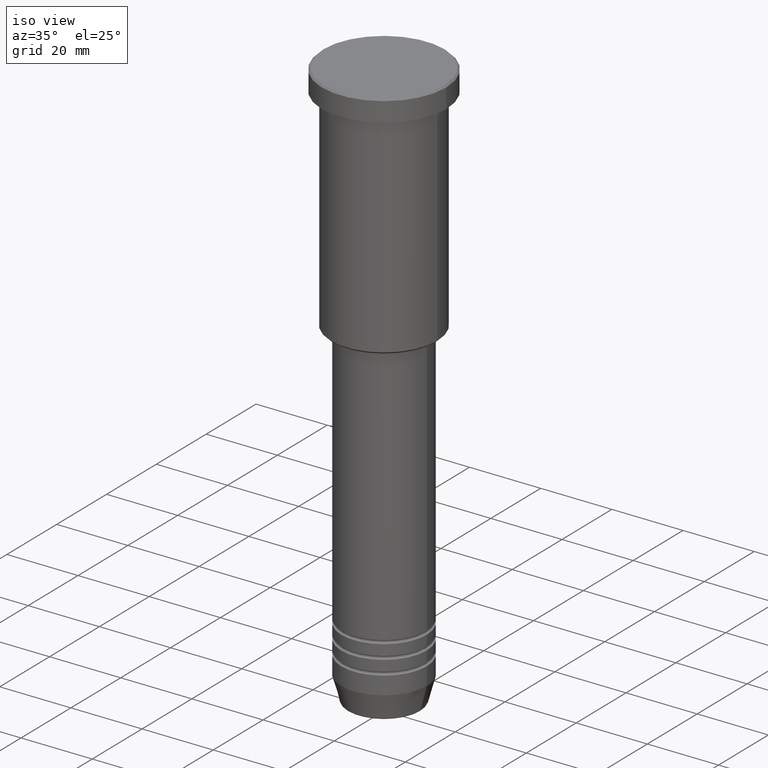
[diagram: clean part render]
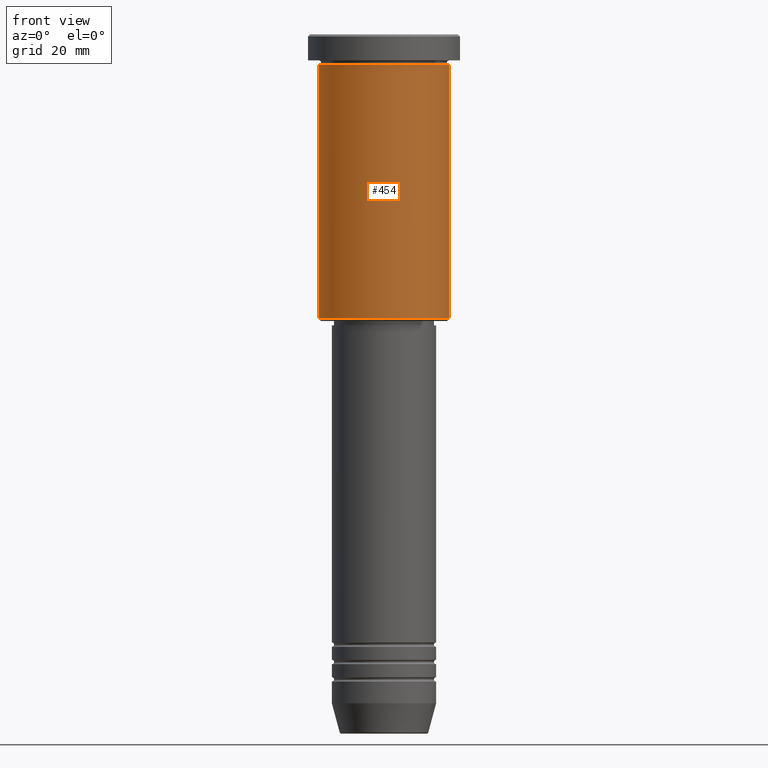
[diagram: tour spotlight — one face highlighted and labeled with its STEP entity id]
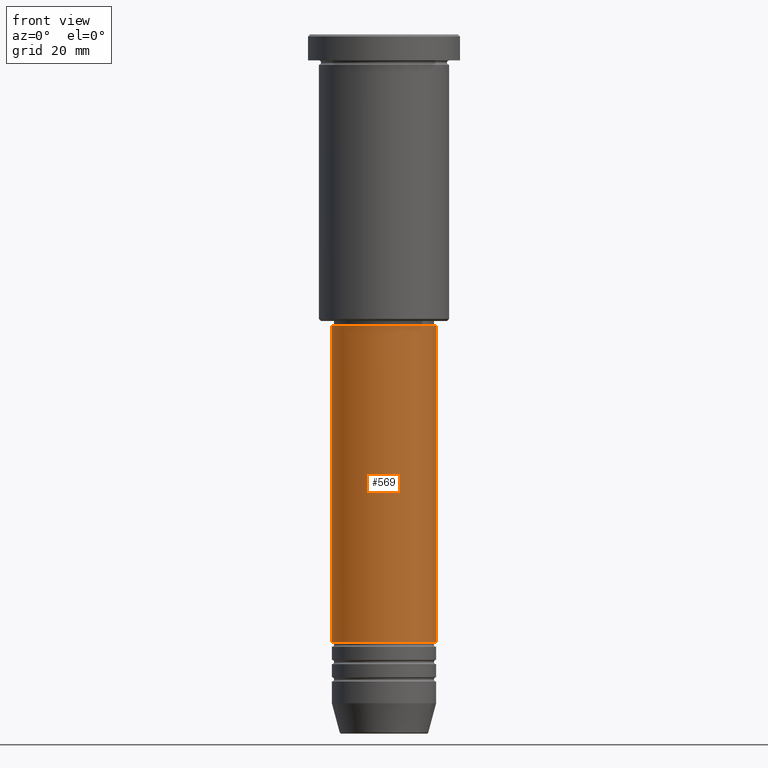
[diagram: tour spotlight — one face highlighted and labeled with its STEP entity id]
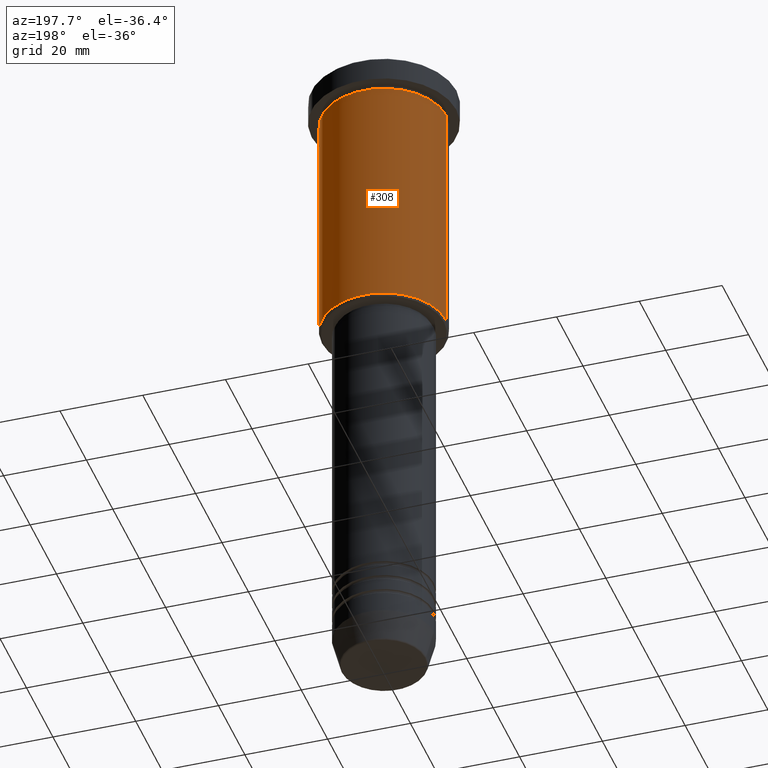
[diagram: tour spotlight — one face highlighted and labeled with its STEP entity id]
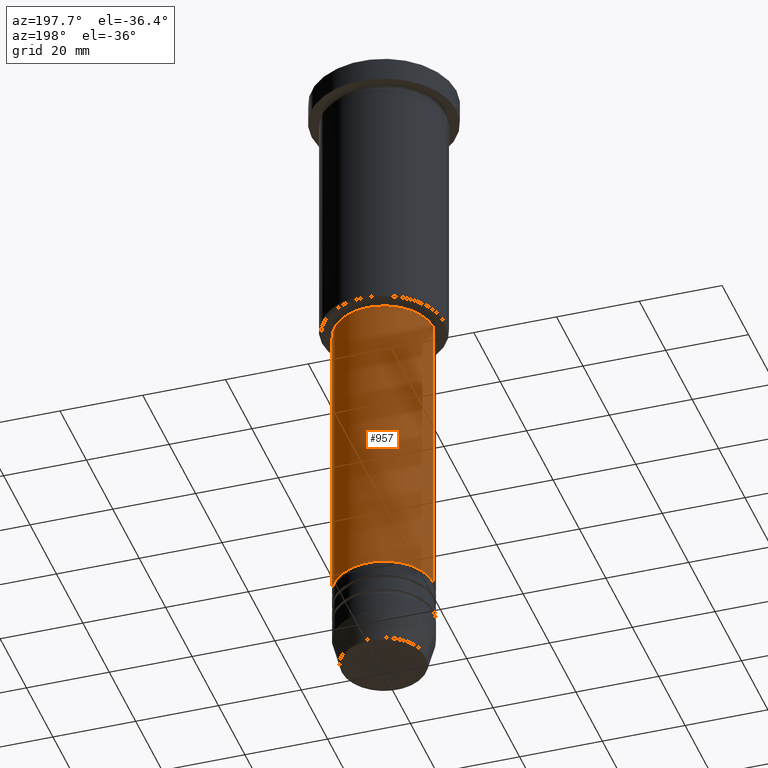
[diagram: tour spotlight — one face highlighted and labeled with its STEP entity id]
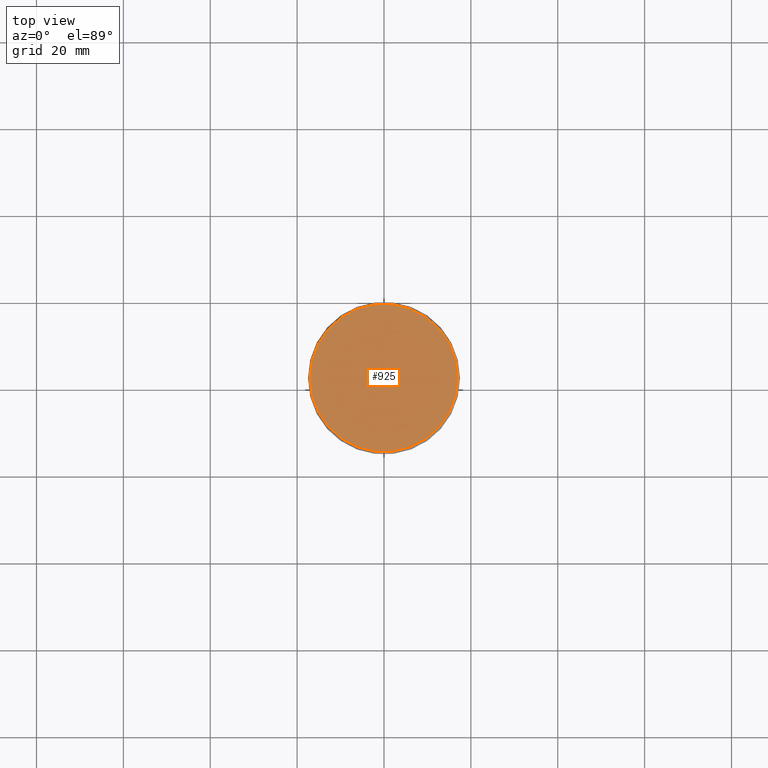
[diagram: tour spotlight — one face highlighted and labeled with its STEP entity id]
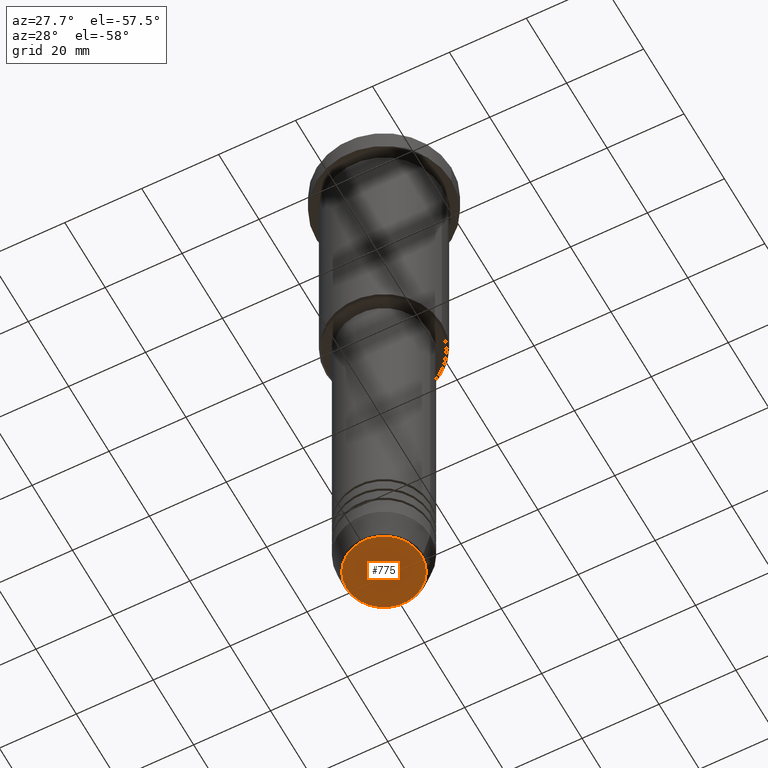
[diagram: tour spotlight — one face highlighted and labeled with its STEP entity id]
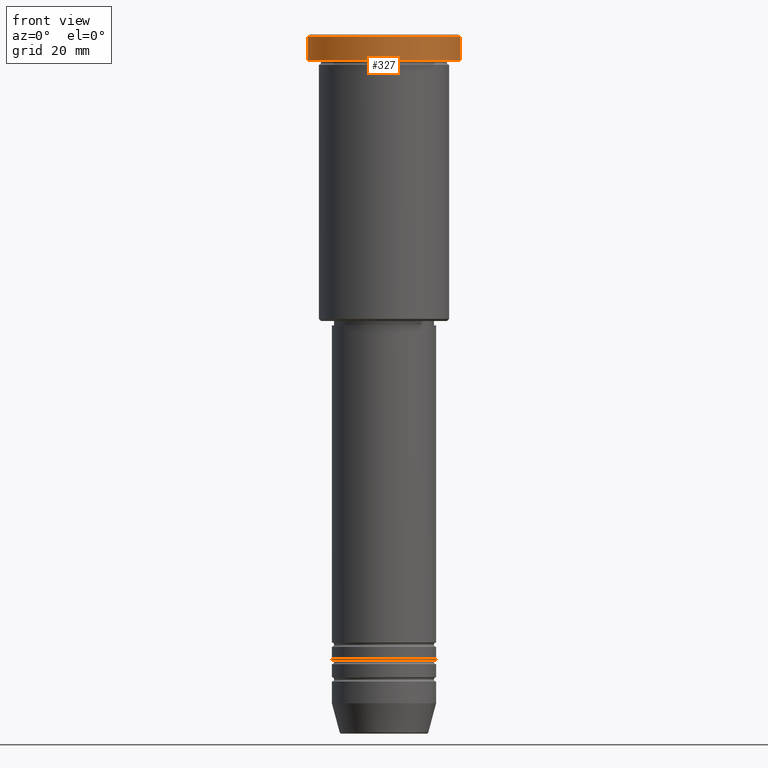
[diagram: tour spotlight — one face highlighted and labeled with its STEP entity id]
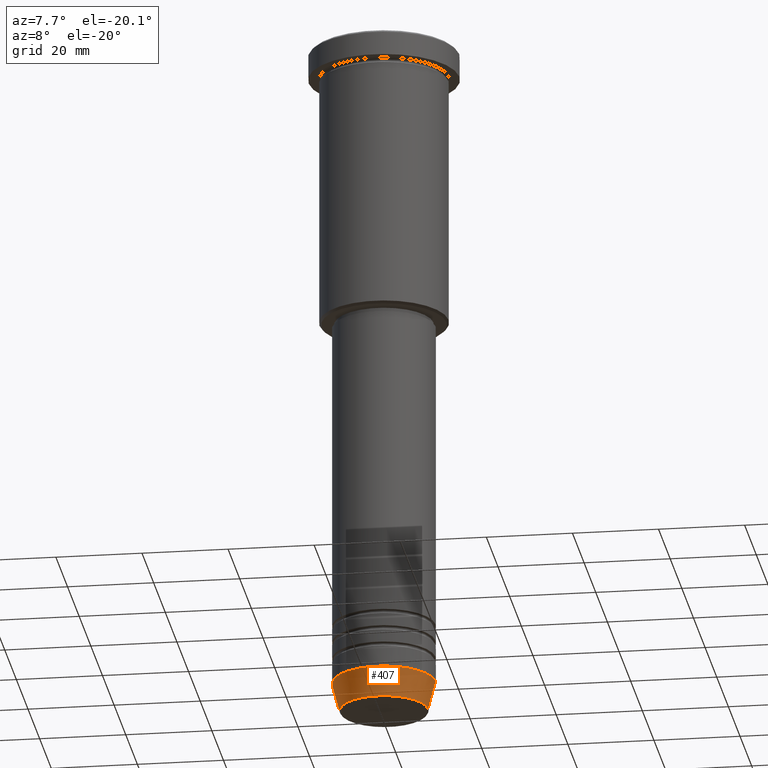
[diagram: tour spotlight — one face highlighted and labeled with its STEP entity id]
A machine part: a face-by-face anatomy tour. The part has 43 B-rep faces; the first image is the clean iso view, then the 8 largest visible faces are spotlighted one at a time (largest first), each with its STEP entity span.

Face 1 — front view, entity #454. In plain terms, the highlighted cylindrical surface (partial cylindrical patch) has radius 15 mm, axis along (-0, -0, 1).
Definition (entity closure, byte-faithful):
#18 = DIRECTION ( 'NONE',  ( -1.000000000000000000, 0.000000000000000000, 0.000000000000000000 ) ) ;
#45 = DIRECTION ( 'NONE',  ( 1.000000000000000000, 0.000000000000000000, 0.000000000000000000 ) ) ;
#73 = VERTEX_POINT ( 'NONE', #602 ) ;
#135 = VERTEX_POINT ( 'NONE', #245 ) ;
#144 = VERTEX_POINT ( 'NONE', #273 ) ;
#151 = DIRECTION ( 'NONE',  ( 1.000000000000000000, 0.000000000000000000, 0.000000000000000000 ) ) ;
#179 = DIRECTION ( 'NONE',  ( -0.000000000000000000, -0.000000000000000000, 1.000000000000000000 ) ) ;
#214 = EDGE_CURVE ( 'NONE', #135, #144, #613, .T. ) ;
#245 = CARTESIAN_POINT ( 'NONE',  ( 15.00000000000000000, 0.000000000000000000, -65.50000000000004263 ) ) ;
#260 = CARTESIAN_POINT ( 'NONE',  ( -15.00000000000000000, 1.836970198721029589E-15, -6.999999999999995559 ) ) ;
#273 = CARTESIAN_POINT ( 'NONE',  ( 15.00000000000000000, 0.000000000000000000, -6.999999999999995559 ) ) ;
#281 = AXIS2_PLACEMENT_3D ( 'NONE', #814, #967, #151 ) ;
#320 = CYLINDRICAL_SURFACE ( 'NONE', #963, 15.00000000000000000 ) ;
#372 = CARTESIAN_POINT ( 'NONE',  ( -15.00000000000000000, 1.836970198721029589E-15, 0.000000000000000000 ) ) ;
#393 = LINE ( 'NONE', #372, #681 ) ;
#454 = ADVANCED_FACE ( 'NONE', ( #1045 ), #320, .T. ) ;
#462 = CARTESIAN_POINT ( 'NONE',  ( 0.000000000000000000, 0.000000000000000000, -65.50000000000004263 ) ) ;
#528 = CARTESIAN_POINT ( 'NONE',  ( 15.00000000000000000, 0.000000000000000000, 0.000000000000000000 ) ) ;
#560 = ORIENTED_EDGE ( 'NONE', *, *, #751, .T. ) ;
#566 = DIRECTION ( 'NONE',  ( -0.000000000000000000, -0.000000000000000000, 1.000000000000000000 ) ) ;
#582 = CARTESIAN_POINT ( 'NONE',  ( 0.000000000000000000, 0.000000000000000000, 0.000000000000000000 ) ) ;
#602 = CARTESIAN_POINT ( 'NONE',  ( -15.00000000000000000, 1.836970198721029589E-15, -65.50000000000004263 ) ) ;
#613 = LINE ( 'NONE', #528, #962 ) ;
#674 = EDGE_CURVE ( 'NONE', #932, #144, #981, .T. ) ;
#681 = VECTOR ( 'NONE', #179, 1000.000000000000000 ) ;
#684 = AXIS2_PLACEMENT_3D ( 'NONE', #462, #566, #18 ) ;
#698 = EDGE_CURVE ( 'NONE', #73, #932, #393, .T. ) ;
#723 = DIRECTION ( 'NONE',  ( -0.000000000000000000, -0.000000000000000000, 1.000000000000000000 ) ) ;
#751 = EDGE_CURVE ( 'NONE', #73, #135, #798, .T. ) ;
#798 = CIRCLE ( 'NONE', #684, 15.00000000000000000 ) ;
#814 = CARTESIAN_POINT ( 'NONE',  ( 0.000000000000000000, 0.000000000000000000, -6.999999999999995559 ) ) ;
#820 = ORIENTED_EDGE ( 'NONE', *, *, #674, .F. ) ;
#850 = ORIENTED_EDGE ( 'NONE', *, *, #214, .T. ) ;
#881 = EDGE_LOOP ( 'NONE', ( #1133, #560, #850, #820 ) ) ;
#932 = VERTEX_POINT ( 'NONE', #260 ) ;
#962 = VECTOR ( 'NONE', #723, 1000.000000000000000 ) ;
#963 = AXIS2_PLACEMENT_3D ( 'NONE', #582, #1119, #45 ) ;
#967 = DIRECTION ( 'NONE',  ( -0.000000000000000000, -0.000000000000000000, 1.000000000000000000 ) ) ;
#981 = CIRCLE ( 'NONE', #281, 15.00000000000000000 ) ;
#1045 = FACE_OUTER_BOUND ( 'NONE', #881, .T. ) ;
#1119 = DIRECTION ( 'NONE',  ( -0.000000000000000000, -0.000000000000000000, 1.000000000000000000 ) ) ;
#1133 = ORIENTED_EDGE ( 'NONE', *, *, #698, .F. ) ;

Face 2 — front view, entity #569. In plain terms, the highlighted cylindrical surface (partial cylindrical patch) has radius 12 mm, axis along (-0, -0, 1).
Definition (entity closure, byte-faithful):
#4 = EDGE_CURVE ( 'NONE', #422, #163, #39, .T. ) ;
#21 = ORIENTED_EDGE ( 'NONE', *, *, #384, .F. ) ;
#39 = LINE ( 'NONE', #142, #557 ) ;
#142 = CARTESIAN_POINT ( 'NONE',  ( -12.00000000000000000, 1.469576158976823947E-15, 0.000000000000000000 ) ) ;
#163 = VERTEX_POINT ( 'NONE', #893 ) ;
#232 = EDGE_LOOP ( 'NONE', ( #424, #996, #348, #21 ) ) ;
#243 = CIRCLE ( 'NONE', #1130, 12.00000000000000000 ) ;
#275 = DIRECTION ( 'NONE',  ( -0.000000000000000000, -0.000000000000000000, 1.000000000000000000 ) ) ;
#348 = ORIENTED_EDGE ( 'NONE', *, *, #1123, .T. ) ;
#377 = DIRECTION ( 'NONE',  ( -0.000000000000000000, -0.000000000000000000, 1.000000000000000000 ) ) ;
#384 = EDGE_CURVE ( 'NONE', #163, #852, #1094, .T. ) ;
#411 = DIRECTION ( 'NONE',  ( -0.000000000000000000, -0.000000000000000000, 1.000000000000000000 ) ) ;
#422 = VERTEX_POINT ( 'NONE', #695 ) ;
#424 = ORIENTED_EDGE ( 'NONE', *, *, #4, .F. ) ;
#455 = CYLINDRICAL_SURFACE ( 'NONE', #663, 12.00000000000000000 ) ;
#517 = FACE_OUTER_BOUND ( 'NONE', #232, .T. ) ;
#526 = CARTESIAN_POINT ( 'NONE',  ( 0.000000000000000000, 0.000000000000000000, 0.000000000000000000 ) ) ;
#557 = VECTOR ( 'NONE', #786, 1000.000000000000000 ) ;
#569 = ADVANCED_FACE ( 'NONE', ( #517 ), #455, .T. ) ;
#575 = VERTEX_POINT ( 'NONE', #701 ) ;
#598 = AXIS2_PLACEMENT_3D ( 'NONE', #1089, #377, #1096 ) ;
#611 = DIRECTION ( 'NONE',  ( -0.000000000000000000, -0.000000000000000000, 1.000000000000000000 ) ) ;
#625 = DIRECTION ( 'NONE',  ( 1.000000000000000000, 0.000000000000000000, 0.000000000000000000 ) ) ;
#633 = DIRECTION ( 'NONE',  ( 1.000000000000000000, 0.000000000000000000, 0.000000000000000000 ) ) ;
#663 = AXIS2_PLACEMENT_3D ( 'NONE', #526, #611, #625 ) ;
#695 = CARTESIAN_POINT ( 'NONE',  ( -12.00000000000000000, 1.469576158976823947E-15, -139.9999999999999147 ) ) ;
#697 = CARTESIAN_POINT ( 'NONE',  ( 12.00000000000000000, 0.000000000000000000, 0.000000000000000000 ) ) ;
#701 = CARTESIAN_POINT ( 'NONE',  ( 12.00000000000000000, 0.000000000000000000, -139.9999999999999147 ) ) ;
#780 = LINE ( 'NONE', #697, #860 ) ;
#786 = DIRECTION ( 'NONE',  ( -0.000000000000000000, -0.000000000000000000, 1.000000000000000000 ) ) ;
#852 = VERTEX_POINT ( 'NONE', #915 ) ;
#860 = VECTOR ( 'NONE', #411, 1000.000000000000000 ) ;
#893 = CARTESIAN_POINT ( 'NONE',  ( -12.00000000000000000, 1.469576158976823947E-15, -67.00000000000002842 ) ) ;
#895 = EDGE_CURVE ( 'NONE', #422, #575, #243, .T. ) ;
#915 = CARTESIAN_POINT ( 'NONE',  ( 12.00000000000000000, 0.000000000000000000, -67.00000000000002842 ) ) ;
#996 = ORIENTED_EDGE ( 'NONE', *, *, #895, .T. ) ;
#997 = CARTESIAN_POINT ( 'NONE',  ( 0.000000000000000000, 0.000000000000000000, -139.9999999999999147 ) ) ;
#1089 = CARTESIAN_POINT ( 'NONE',  ( 0.000000000000000000, 0.000000000000000000, -67.00000000000002842 ) ) ;
#1094 = CIRCLE ( 'NONE', #598, 12.00000000000000000 ) ;
#1096 = DIRECTION ( 'NONE',  ( 1.000000000000000000, 0.000000000000000000, 0.000000000000000000 ) ) ;
#1123 = EDGE_CURVE ( 'NONE', #575, #852, #780, .T. ) ;
#1130 = AXIS2_PLACEMENT_3D ( 'NONE', #997, #275, #633 ) ;

Face 3 — auxiliary view, entity #308. In plain terms, the highlighted cylindrical surface (partial cylindrical patch) has radius 15 mm, axis along (-0, -0, 1).
Definition (entity closure, byte-faithful):
#20 = DIRECTION ( 'NONE',  ( -0.000000000000000000, -0.000000000000000000, 1.000000000000000000 ) ) ;
#73 = VERTEX_POINT ( 'NONE', #602 ) ;
#84 = AXIS2_PLACEMENT_3D ( 'NONE', #574, #683, #326 ) ;
#100 = FACE_OUTER_BOUND ( 'NONE', #615, .T. ) ;
#135 = VERTEX_POINT ( 'NONE', #245 ) ;
#144 = VERTEX_POINT ( 'NONE', #273 ) ;
#179 = DIRECTION ( 'NONE',  ( -0.000000000000000000, -0.000000000000000000, 1.000000000000000000 ) ) ;
#214 = EDGE_CURVE ( 'NONE', #135, #144, #613, .T. ) ;
#230 = EDGE_CURVE ( 'NONE', #144, #932, #755, .T. ) ;
#245 = CARTESIAN_POINT ( 'NONE',  ( 15.00000000000000000, 0.000000000000000000, -65.50000000000004263 ) ) ;
#260 = CARTESIAN_POINT ( 'NONE',  ( -15.00000000000000000, 1.836970198721029589E-15, -6.999999999999995559 ) ) ;
#273 = CARTESIAN_POINT ( 'NONE',  ( 15.00000000000000000, 0.000000000000000000, -6.999999999999995559 ) ) ;
#301 = AXIS2_PLACEMENT_3D ( 'NONE', #717, #620, #905 ) ;
#308 = ADVANCED_FACE ( 'NONE', ( #100 ), #1104, .T. ) ;
#326 = DIRECTION ( 'NONE',  ( -1.000000000000000000, 0.000000000000000000, 0.000000000000000000 ) ) ;
#331 = ORIENTED_EDGE ( 'NONE', *, *, #230, .F. ) ;
#372 = CARTESIAN_POINT ( 'NONE',  ( -15.00000000000000000, 1.836970198721029589E-15, 0.000000000000000000 ) ) ;
#393 = LINE ( 'NONE', #372, #681 ) ;
#447 = EDGE_CURVE ( 'NONE', #135, #73, #488, .T. ) ;
#488 = CIRCLE ( 'NONE', #84, 15.00000000000000000 ) ;
#528 = CARTESIAN_POINT ( 'NONE',  ( 15.00000000000000000, 0.000000000000000000, 0.000000000000000000 ) ) ;
#574 = CARTESIAN_POINT ( 'NONE',  ( 0.000000000000000000, 0.000000000000000000, -65.50000000000004263 ) ) ;
#602 = CARTESIAN_POINT ( 'NONE',  ( -15.00000000000000000, 1.836970198721029589E-15, -65.50000000000004263 ) ) ;
#613 = LINE ( 'NONE', #528, #962 ) ;
#615 = EDGE_LOOP ( 'NONE', ( #838, #788, #331, #868 ) ) ;
#620 = DIRECTION ( 'NONE',  ( -0.000000000000000000, -0.000000000000000000, 1.000000000000000000 ) ) ;
#681 = VECTOR ( 'NONE', #179, 1000.000000000000000 ) ;
#683 = DIRECTION ( 'NONE',  ( -0.000000000000000000, -0.000000000000000000, 1.000000000000000000 ) ) ;
#698 = EDGE_CURVE ( 'NONE', #73, #932, #393, .T. ) ;
#717 = CARTESIAN_POINT ( 'NONE',  ( 0.000000000000000000, 0.000000000000000000, -6.999999999999995559 ) ) ;
#723 = DIRECTION ( 'NONE',  ( -0.000000000000000000, -0.000000000000000000, 1.000000000000000000 ) ) ;
#755 = CIRCLE ( 'NONE', #301, 15.00000000000000000 ) ;
#788 = ORIENTED_EDGE ( 'NONE', *, *, #698, .T. ) ;
#838 = ORIENTED_EDGE ( 'NONE', *, *, #447, .T. ) ;
#868 = ORIENTED_EDGE ( 'NONE', *, *, #214, .F. ) ;
#905 = DIRECTION ( 'NONE',  ( 1.000000000000000000, 0.000000000000000000, 0.000000000000000000 ) ) ;
#930 = CARTESIAN_POINT ( 'NONE',  ( 0.000000000000000000, 0.000000000000000000, 0.000000000000000000 ) ) ;
#932 = VERTEX_POINT ( 'NONE', #260 ) ;
#962 = VECTOR ( 'NONE', #723, 1000.000000000000000 ) ;
#1003 = DIRECTION ( 'NONE',  ( 1.000000000000000000, 0.000000000000000000, 0.000000000000000000 ) ) ;
#1016 = AXIS2_PLACEMENT_3D ( 'NONE', #930, #20, #1003 ) ;
#1104 = CYLINDRICAL_SURFACE ( 'NONE', #1016, 15.00000000000000000 ) ;

Face 4 — auxiliary view, entity #957. In plain terms, the highlighted cylindrical surface (partial cylindrical patch) has radius 12 mm, axis along (-0, -0, 1).
Definition (entity closure, byte-faithful):
#4 = EDGE_CURVE ( 'NONE', #422, #163, #39, .T. ) ;
#7 = DIRECTION ( 'NONE',  ( -0.000000000000000000, -0.000000000000000000, 1.000000000000000000 ) ) ;
#8 = CARTESIAN_POINT ( 'NONE',  ( 0.000000000000000000, 0.000000000000000000, -139.9999999999999147 ) ) ;
#39 = LINE ( 'NONE', #142, #557 ) ;
#107 = DIRECTION ( 'NONE',  ( 1.000000000000000000, 0.000000000000000000, 0.000000000000000000 ) ) ;
#115 = CARTESIAN_POINT ( 'NONE',  ( 0.000000000000000000, 0.000000000000000000, -67.00000000000002842 ) ) ;
#142 = CARTESIAN_POINT ( 'NONE',  ( -12.00000000000000000, 1.469576158976823947E-15, 0.000000000000000000 ) ) ;
#163 = VERTEX_POINT ( 'NONE', #893 ) ;
#189 = DIRECTION ( 'NONE',  ( 1.000000000000000000, 0.000000000000000000, 0.000000000000000000 ) ) ;
#259 = CIRCLE ( 'NONE', #420, 12.00000000000000000 ) ;
#313 = EDGE_CURVE ( 'NONE', #575, #422, #833, .T. ) ;
#364 = AXIS2_PLACEMENT_3D ( 'NONE', #1113, #845, #399 ) ;
#397 = DIRECTION ( 'NONE',  ( -0.000000000000000000, -0.000000000000000000, 1.000000000000000000 ) ) ;
#399 = DIRECTION ( 'NONE',  ( 1.000000000000000000, 0.000000000000000000, 0.000000000000000000 ) ) ;
#411 = DIRECTION ( 'NONE',  ( -0.000000000000000000, -0.000000000000000000, 1.000000000000000000 ) ) ;
#420 = AXIS2_PLACEMENT_3D ( 'NONE', #115, #7, #107 ) ;
#422 = VERTEX_POINT ( 'NONE', #695 ) ;
#520 = ORIENTED_EDGE ( 'NONE', *, *, #4, .T. ) ;
#557 = VECTOR ( 'NONE', #786, 1000.000000000000000 ) ;
#575 = VERTEX_POINT ( 'NONE', #701 ) ;
#577 = ORIENTED_EDGE ( 'NONE', *, *, #313, .T. ) ;
#695 = CARTESIAN_POINT ( 'NONE',  ( -12.00000000000000000, 1.469576158976823947E-15, -139.9999999999999147 ) ) ;
#697 = CARTESIAN_POINT ( 'NONE',  ( 12.00000000000000000, 0.000000000000000000, 0.000000000000000000 ) ) ;
#700 = AXIS2_PLACEMENT_3D ( 'NONE', #8, #397, #189 ) ;
#701 = CARTESIAN_POINT ( 'NONE',  ( 12.00000000000000000, 0.000000000000000000, -139.9999999999999147 ) ) ;
#730 = EDGE_CURVE ( 'NONE', #852, #163, #259, .T. ) ;
#732 = ORIENTED_EDGE ( 'NONE', *, *, #730, .F. ) ;
#780 = LINE ( 'NONE', #697, #860 ) ;
#786 = DIRECTION ( 'NONE',  ( -0.000000000000000000, -0.000000000000000000, 1.000000000000000000 ) ) ;
#833 = CIRCLE ( 'NONE', #700, 12.00000000000000000 ) ;
#845 = DIRECTION ( 'NONE',  ( -0.000000000000000000, -0.000000000000000000, 1.000000000000000000 ) ) ;
#852 = VERTEX_POINT ( 'NONE', #915 ) ;
#860 = VECTOR ( 'NONE', #411, 1000.000000000000000 ) ;
#893 = CARTESIAN_POINT ( 'NONE',  ( -12.00000000000000000, 1.469576158976823947E-15, -67.00000000000002842 ) ) ;
#915 = CARTESIAN_POINT ( 'NONE',  ( 12.00000000000000000, 0.000000000000000000, -67.00000000000002842 ) ) ;
#935 = EDGE_LOOP ( 'NONE', ( #577, #520, #732, #1092 ) ) ;
#936 = FACE_OUTER_BOUND ( 'NONE', #935, .T. ) ;
#957 = ADVANCED_FACE ( 'NONE', ( #936 ), #1010, .T. ) ;
#1010 = CYLINDRICAL_SURFACE ( 'NONE', #364, 12.00000000000000000 ) ;
#1092 = ORIENTED_EDGE ( 'NONE', *, *, #1123, .F. ) ;
#1113 = CARTESIAN_POINT ( 'NONE',  ( 0.000000000000000000, 0.000000000000000000, 0.000000000000000000 ) ) ;
#1123 = EDGE_CURVE ( 'NONE', #575, #852, #780, .T. ) ;

Face 5 — top view, entity #925. In plain terms, the highlighted planar face has unit normal (0, -0, 1).
Definition (entity closure, byte-faithful):
#13 = DIRECTION ( 'NONE',  ( -0.000000000000000000, -0.000000000000000000, 1.000000000000000000 ) ) ;
#71 = FACE_OUTER_BOUND ( 'NONE', #844, .T. ) ;
#77 = VERTEX_POINT ( 'NONE', #1030 ) ;
#143 = CARTESIAN_POINT ( 'NONE',  ( 17.00000000000000000, 2.112515728529184067E-15, 0.000000000000000000 ) ) ;
#276 = EDGE_CURVE ( 'NONE', #1178, #77, #456, .T. ) ;
#282 = ORIENTED_EDGE ( 'NONE', *, *, #276, .T. ) ;
#287 = CARTESIAN_POINT ( 'NONE',  ( 0.000000000000000000, 0.000000000000000000, 0.000000000000000000 ) ) ;
#337 = AXIS2_PLACEMENT_3D ( 'NONE', #287, #13, #667 ) ;
#344 = EDGE_CURVE ( 'NONE', #77, #1178, #1145, .T. ) ;
#353 = DIRECTION ( 'NONE',  ( 0.000000000000000000, -0.000000000000000000, 1.000000000000000000 ) ) ;
#405 = ORIENTED_EDGE ( 'NONE', *, *, #344, .T. ) ;
#432 = AXIS2_PLACEMENT_3D ( 'NONE', #1110, #467, #658 ) ;
#456 = CIRCLE ( 'NONE', #337, 17.00000000000000000 ) ;
#467 = DIRECTION ( 'NONE',  ( -0.000000000000000000, -0.000000000000000000, 1.000000000000000000 ) ) ;
#614 = CARTESIAN_POINT ( 'NONE',  ( 0.000000000000000000, 0.000000000000000000, 0.000000000000000000 ) ) ;
#658 = DIRECTION ( 'NONE',  ( 1.000000000000000000, 0.000000000000000000, 0.000000000000000000 ) ) ;
#667 = DIRECTION ( 'NONE',  ( 1.000000000000000000, 0.000000000000000000, 0.000000000000000000 ) ) ;
#718 = DIRECTION ( 'NONE',  ( 1.000000000000000000, 0.000000000000000000, 0.000000000000000000 ) ) ;
#844 = EDGE_LOOP ( 'NONE', ( #405, #282 ) ) ;
#914 = AXIS2_PLACEMENT_3D ( 'NONE', #614, #353, #718 ) ;
#925 = ADVANCED_FACE ( 'NONE', ( #71 ), #1153, .T. ) ;
#1030 = CARTESIAN_POINT ( 'NONE',  ( -17.00000000000000000, 0.000000000000000000, 0.000000000000000000 ) ) ;
#1110 = CARTESIAN_POINT ( 'NONE',  ( 0.000000000000000000, 0.000000000000000000, 0.000000000000000000 ) ) ;
#1145 = CIRCLE ( 'NONE', #432, 17.00000000000000000 ) ;
#1153 = PLANE ( 'NONE',  #914 ) ;
#1178 = VERTEX_POINT ( 'NONE', #143 ) ;

Face 6 — auxiliary view, entity #775. In plain terms, the highlighted planar face has unit normal (0, -0, 1).
Definition (entity closure, byte-faithful):
#83 = CIRCLE ( 'NONE', #1035, 9.740692158992658278 ) ;
#85 = CARTESIAN_POINT ( 'NONE',  ( 0.000000000000000000, 0.000000000000000000, -161.0000000000000284 ) ) ;
#104 = VERTEX_POINT ( 'NONE', #1143 ) ;
#136 = DIRECTION ( 'NONE',  ( 0.000000000000000000, 0.000000000000000000, -1.000000000000000000 ) ) ;
#178 = EDGE_CURVE ( 'NONE', #104, #764, #83, .T. ) ;
#229 = CARTESIAN_POINT ( 'NONE',  ( 0.000000000000000000, 0.000000000000000000, -161.0000000000000284 ) ) ;
#396 = CARTESIAN_POINT ( 'NONE',  ( 9.740692158992658278, 0.000000000000000000, -161.0000000000000284 ) ) ;
#487 = ORIENTED_EDGE ( 'NONE', *, *, #178, .T. ) ;
#523 = DIRECTION ( 'NONE',  ( 0.000000000000000000, 0.000000000000000000, -1.000000000000000000 ) ) ;
#609 = CARTESIAN_POINT ( 'NONE',  ( 0.000000000000000000, 0.000000000000000000, -161.0000000000000284 ) ) ;
#626 = DIRECTION ( 'NONE',  ( 1.000000000000000000, 0.000000000000000000, 0.000000000000000000 ) ) ;
#643 = AXIS2_PLACEMENT_3D ( 'NONE', #229, #136, #687 ) ;
#687 = DIRECTION ( 'NONE',  ( 1.000000000000000000, 0.000000000000000000, 0.000000000000000000 ) ) ;
#704 = AXIS2_PLACEMENT_3D ( 'NONE', #85, #746, #1082 ) ;
#746 = DIRECTION ( 'NONE',  ( 0.000000000000000000, -0.000000000000000000, 1.000000000000000000 ) ) ;
#764 = VERTEX_POINT ( 'NONE', #396 ) ;
#775 = ADVANCED_FACE ( 'NONE', ( #928 ), #1182, .F. ) ;
#783 = EDGE_LOOP ( 'NONE', ( #847, #487 ) ) ;
#847 = ORIENTED_EDGE ( 'NONE', *, *, #1093, .T. ) ;
#928 = FACE_OUTER_BOUND ( 'NONE', #783, .T. ) ;
#1035 = AXIS2_PLACEMENT_3D ( 'NONE', #609, #523, #626 ) ;
#1079 = CIRCLE ( 'NONE', #643, 9.740692158992658278 ) ;
#1082 = DIRECTION ( 'NONE',  ( 1.000000000000000000, 0.000000000000000000, 0.000000000000000000 ) ) ;
#1093 = EDGE_CURVE ( 'NONE', #764, #104, #1079, .T. ) ;
#1143 = CARTESIAN_POINT ( 'NONE',  ( -9.740692158992658278, 1.222463696683474999E-15, -161.0000000000000284 ) ) ;
#1182 = PLANE ( 'NONE',  #704 ) ;

Face 7 — front view, entity #327. In plain terms, the highlighted cylindrical surface (partial cylindrical patch) has radius 17.5 mm, axis along (-0, -0, 1).
Definition (entity closure, byte-faithful):
#9 = CARTESIAN_POINT ( 'NONE',  ( 17.50000000000000000, 0.000000000000000000, -5.999999999999995559 ) ) ;
#22 = DIRECTION ( 'NONE',  ( -0.000000000000000000, -0.000000000000000000, 1.000000000000000000 ) ) ;
#70 = VERTEX_POINT ( 'NONE', #1050 ) ;
#108 = DIRECTION ( 'NONE',  ( 1.000000000000000000, 0.000000000000000000, 0.000000000000000000 ) ) ;
#109 = CIRCLE ( 'NONE', #404, 17.50000000000000000 ) ;
#110 = DIRECTION ( 'NONE',  ( 1.000000000000000000, 0.000000000000000000, 0.000000000000000000 ) ) ;
#153 = DIRECTION ( 'NONE',  ( -0.000000000000000000, -0.000000000000000000, 1.000000000000000000 ) ) ;
#185 = ORIENTED_EDGE ( 'NONE', *, *, #1154, .T. ) ;
#212 = DIRECTION ( 'NONE',  ( -0.000000000000000000, -0.000000000000000000, 1.000000000000000000 ) ) ;
#238 = LINE ( 'NONE', #338, #239 ) ;
#239 = VECTOR ( 'NONE', #883, 1000.000000000000000 ) ;
#241 = CARTESIAN_POINT ( 'NONE',  ( 17.50000000000000000, 0.000000000000000000, 0.000000000000000000 ) ) ;
#247 = EDGE_LOOP ( 'NONE', ( #349, #969, #185, #592 ) ) ;
#327 = ADVANCED_FACE ( 'NONE', ( #647 ), #754, .T. ) ;
#338 = CARTESIAN_POINT ( 'NONE',  ( -17.50000000000000000, 2.143131898507868248E-15, 0.000000000000000000 ) ) ;
#349 = ORIENTED_EDGE ( 'NONE', *, *, #540, .F. ) ;
#374 = DIRECTION ( 'NONE',  ( 0.000000000000000000, 0.000000000000000000, -1.000000000000000000 ) ) ;
#404 = AXIS2_PLACEMENT_3D ( 'NONE', #408, #22, #110 ) ;
#406 = VECTOR ( 'NONE', #153, 1000.000000000000000 ) ;
#408 = CARTESIAN_POINT ( 'NONE',  ( 0.000000000000000000, 0.000000000000000000, -5.999999999999995559 ) ) ;
#451 = DIRECTION ( 'NONE',  ( 1.000000000000000000, 0.000000000000000000, 0.000000000000000000 ) ) ;
#474 = CARTESIAN_POINT ( 'NONE',  ( 0.000000000000000000, 0.000000000000000000, 0.000000000000000000 ) ) ;
#486 = AXIS2_PLACEMENT_3D ( 'NONE', #474, #212, #108 ) ;
#540 = EDGE_CURVE ( 'NONE', #70, #922, #238, .T. ) ;
#592 = ORIENTED_EDGE ( 'NONE', *, *, #869, .T. ) ;
#647 = FACE_OUTER_BOUND ( 'NONE', #247, .T. ) ;
#692 = LINE ( 'NONE', #241, #406 ) ;
#754 = CYLINDRICAL_SURFACE ( 'NONE', #486, 17.50000000000000000 ) ;
#799 = CARTESIAN_POINT ( 'NONE',  ( -17.50000000000000000, 2.143131898507868248E-15, -0.5000000000000004441 ) ) ;
#859 = AXIS2_PLACEMENT_3D ( 'NONE', #991, #374, #451 ) ;
#869 = EDGE_CURVE ( 'NONE', #1027, #922, #985, .T. ) ;
#883 = DIRECTION ( 'NONE',  ( -0.000000000000000000, -0.000000000000000000, 1.000000000000000000 ) ) ;
#922 = VERTEX_POINT ( 'NONE', #799 ) ;
#926 = CARTESIAN_POINT ( 'NONE',  ( 17.50000000000000000, 0.000000000000000000, -0.5000000000000004441 ) ) ;
#954 = EDGE_CURVE ( 'NONE', #70, #1064, #109, .T. ) ;
#969 = ORIENTED_EDGE ( 'NONE', *, *, #954, .T. ) ;
#985 = CIRCLE ( 'NONE', #859, 17.50000000000000000 ) ;
#991 = CARTESIAN_POINT ( 'NONE',  ( 0.000000000000000000, 0.000000000000000000, -0.5000000000000004441 ) ) ;
#1027 = VERTEX_POINT ( 'NONE', #926 ) ;
#1050 = CARTESIAN_POINT ( 'NONE',  ( -17.50000000000000000, 2.143131898507868248E-15, -5.999999999999995559 ) ) ;
#1064 = VERTEX_POINT ( 'NONE', #9 ) ;
#1154 = EDGE_CURVE ( 'NONE', #1064, #1027, #692, .T. ) ;

Face 8 — auxiliary view, entity #407. In plain terms, the highlighted conical surface has half-angle 15 deg.
Definition (entity closure, byte-faithful):
#67 = CARTESIAN_POINT ( 'NONE',  ( -10.22365507213719127, 1.360806402472382744E-15, -160.6294095225512706 ) ) ;
#79 = DIRECTION ( 'NONE',  ( 0.2588190451025213501, 0.000000000000000000, 0.9659258262890680902 ) ) ;
#91 = EDGE_LOOP ( 'NONE', ( #782, #1165, #472, #694 ) ) ;
#129 = FACE_OUTER_BOUND ( 'NONE', #91, .T. ) ;
#174 = CARTESIAN_POINT ( 'NONE',  ( 12.00000000000000000, 0.000000000000000000, -154.0000000000000284 ) ) ;
#187 = EDGE_CURVE ( 'NONE', #223, #858, #219, .T. ) ;
#219 = CIRCLE ( 'NONE', #468, 10.22365507213719127 ) ;
#223 = VERTEX_POINT ( 'NONE', #67 ) ;
#234 = EDGE_CURVE ( 'NONE', #864, #884, #834, .T. ) ;
#272 = LINE ( 'NONE', #1088, #665 ) ;
#332 = DIRECTION ( 'NONE',  ( 1.000000000000000000, 0.000000000000000000, 0.000000000000000000 ) ) ;
#382 = VECTOR ( 'NONE', #79, 1000.000000000000000 ) ;
#407 = ADVANCED_FACE ( 'NONE', ( #129 ), #811, .T. ) ;
#468 = AXIS2_PLACEMENT_3D ( 'NONE', #1150, #710, #1062 ) ;
#472 = ORIENTED_EDGE ( 'NONE', *, *, #661, .T. ) ;
#549 = DIRECTION ( 'NONE',  ( 1.000000000000000000, 0.000000000000000000, 0.000000000000000000 ) ) ;
#661 = EDGE_CURVE ( 'NONE', #858, #884, #1075, .T. ) ;
#665 = VECTOR ( 'NONE', #1101, 1000.000000000000000 ) ;
#694 = ORIENTED_EDGE ( 'NONE', *, *, #234, .F. ) ;
#710 = DIRECTION ( 'NONE',  ( -0.000000000000000000, -0.000000000000000000, 1.000000000000000000 ) ) ;
#724 = CARTESIAN_POINT ( 'NONE',  ( 10.22365507213719127, 0.000000000000000000, -160.6294095225512706 ) ) ;
#729 = CARTESIAN_POINT ( 'NONE',  ( 0.000000000000000000, 0.000000000000000000, -154.0000000000000284 ) ) ;
#782 = ORIENTED_EDGE ( 'NONE', *, *, #785, .F. ) ;
#785 = EDGE_CURVE ( 'NONE', #223, #864, #272, .T. ) ;
#810 = CARTESIAN_POINT ( 'NONE',  ( -12.00000000000000000, 1.469576158976823947E-15, -154.0000000000000284 ) ) ;
#811 = CONICAL_SURFACE ( 'NONE', #873, 12.00000000000000000, 0.2617993877991500740 ) ;
#819 = CARTESIAN_POINT ( 'NONE',  ( 12.00000000000000000, 0.000000000000000000, -154.0000000000000284 ) ) ;
#834 = CIRCLE ( 'NONE', #929, 12.00000000000000000 ) ;
#858 = VERTEX_POINT ( 'NONE', #724 ) ;
#864 = VERTEX_POINT ( 'NONE', #810 ) ;
#873 = AXIS2_PLACEMENT_3D ( 'NONE', #1125, #950, #332 ) ;
#884 = VERTEX_POINT ( 'NONE', #819 ) ;
#929 = AXIS2_PLACEMENT_3D ( 'NONE', #729, #995, #549 ) ;
#950 = DIRECTION ( 'NONE',  ( -0.000000000000000000, -0.000000000000000000, 1.000000000000000000 ) ) ;
#995 = DIRECTION ( 'NONE',  ( -0.000000000000000000, -0.000000000000000000, 1.000000000000000000 ) ) ;
#1062 = DIRECTION ( 'NONE',  ( 1.000000000000000000, 0.000000000000000000, 0.000000000000000000 ) ) ;
#1075 = LINE ( 'NONE', #174, #382 ) ;
#1088 = CARTESIAN_POINT ( 'NONE',  ( -12.00000000000000000, 1.469576158976823947E-15, -154.0000000000000284 ) ) ;
#1101 = DIRECTION ( 'NONE',  ( -0.2588190451025213501, 3.169619151431772337E-17, 0.9659258262890680902 ) ) ;
#1125 = CARTESIAN_POINT ( 'NONE',  ( 0.000000000000000000, 0.000000000000000000, -154.0000000000000284 ) ) ;
#1150 = CARTESIAN_POINT ( 'NONE',  ( 0.000000000000000000, 0.000000000000000000, -160.6294095225512706 ) ) ;
#1165 = ORIENTED_EDGE ( 'NONE', *, *, #187, .T. ) ;